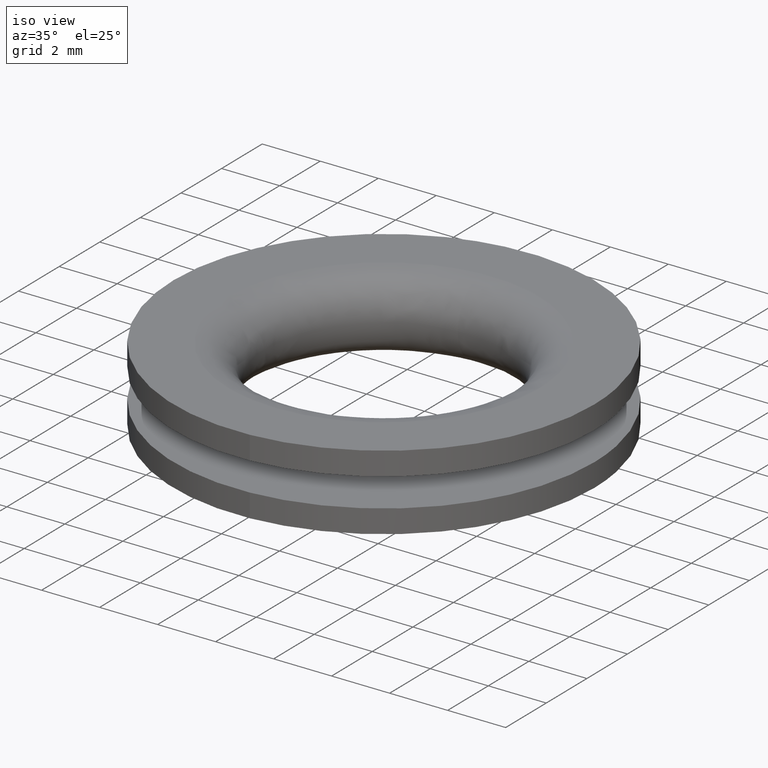
[diagram: clean part render]
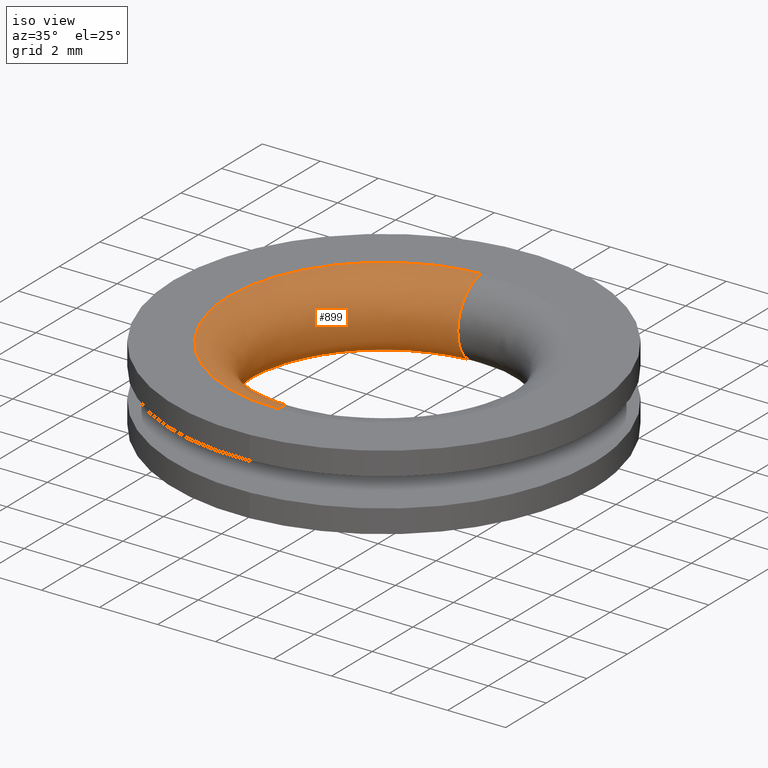
[diagram: same view with one face highlighted and labeled with its STEP entity id]
A machine part, iso view. The second image highlights one B-rep face of the part: STEP entity #899.
In plain terms, the highlighted face is a freeform B-spline surface patch.
Its self-contained STEP definition (entity closure, byte-faithful):
#701=CARTESIAN_POINT('',(-0.373072312370778,5.336976844726053,4.607788E-012));
#702=VERTEX_POINT('',#701);
#720=CARTESIAN_POINT('',(0.067225597682583,-5.349573136930310,4.742582E-012));
#721=VERTEX_POINT('',#720);
#735=CARTESIAN_POINT('',(0.067248550375671,-5.351187910571347,2.599999000000008));
#736=VERTEX_POINT('',#735);
#737=CARTESIAN_POINT('',(0.067225597682583,-5.349573136930310,4.742582E-012));
#738=CARTESIAN_POINT('',(0.050889776216541,-4.049678262613917,0.000002483334297));
#739=CARTESIAN_POINT('',(0.050891105894500,-4.049678245908878,1.300000000001181));
#740=CARTESIAN_POINT('',(0.050892437225290,-4.049678229183074,2.601613452466413));
#741=CARTESIAN_POINT('',(0.067248550375671,-5.351187910571347,2.599999000000008));
#749=(BOUNDED_CURVE()B_SPLINE_CURVE(2,(#737,#738,#739,#740,#741),.UNSPECIFIED.,.F.,.U.)B_SPLINE_CURVE_WITH_KNOTS((3,2,3),(-3.781080216837798,-2.0,-0.217410354238450),.UNSPECIFIED.)CURVE()GEOMETRIC_REPRESENTATION_ITEM()RATIONAL_B_SPLINE_CURVE((0.930395486795932,0.682054713381032,1.0,0.681785261277047,0.930816820930347))REPRESENTATION_ITEM(''));
#750=EDGE_CURVE('',#721,#736,#749,.T.);
#767=CARTESIAN_POINT('',(-0.373184664486969,5.338584167763401,2.599998998458898));
#768=VERTEX_POINT('',#767);
#784=CARTESIAN_POINT('',(-0.373072312370778,5.336976844726054,4.607788E-012));
#785=CARTESIAN_POINT('',(-0.282419529414038,4.040138983922403,-0.000002447796619));
#786=CARTESIAN_POINT('',(-0.282419529414038,4.040138983922404,1.300000000000000));
#787=CARTESIAN_POINT('',(-0.282419529414038,4.040138983922403,2.601614695546028));
#788=CARTESIAN_POINT('',(-0.373184664486969,5.338584167763401,2.599998998458897));
#796=(BOUNDED_CURVE()B_SPLINE_CURVE(2,(#784,#785,#786,#787,#788),.UNSPECIFIED.,.F.,.U.)B_SPLINE_CURVE_WITH_KNOTS((3,2,3),(-3.781084824768846,-2.0,-0.217409193549716),.UNSPECIFIED.)CURVE()GEOMETRIC_REPRESENTATION_ITEM()RATIONAL_B_SPLINE_CURVE((0.909468241467737,0.666711634718936,0.977505800795127,0.666448845258098,0.909879158943792))REPRESENTATION_ITEM(''));
#797=EDGE_CURVE('',#702,#768,#796,.T.);
#802=CARTESIAN_POINT('',(0.069548024091555,-5.534164583073453,0.013173857421151));
#803=CARTESIAN_POINT('',(-5.464616558981897,-5.603712607165005,0.013173857421151));
#804=CARTESIAN_POINT('',(-5.534164583073453,-0.069548024091555,0.013173857421151));
#805=CARTESIAN_POINT('',(-5.599842498862614,5.156659336910904,0.013173857421151));
#806=CARTESIAN_POINT('',(-0.385945763786428,5.521128546557752,0.013173857421151));
#807=CARTESIAN_POINT('',(0.050892436395499,-4.049678229183365,-0.199802171926271));
#808=CARTESIAN_POINT('',(-3.998785792787865,-4.100570665578863,-0.199802171926271));
#809=CARTESIAN_POINT('',(-4.049678229183365,-0.050892436395499,-0.199802171926271));
#810=CARTESIAN_POINT('',(-4.097738676558385,3.773435129825095,-0.199802171926271));
#811=CARTESIAN_POINT('',(-0.282419529414039,4.040138983922403,-0.199802171926271));
#812=CARTESIAN_POINT('',(0.050892436395499,-4.049678229183366,1.300000000000000));
#813=CARTESIAN_POINT('',(-3.998785792787866,-4.100570665578865,1.300000000000000));
#814=CARTESIAN_POINT('',(-4.049678229183366,-0.050892436395499,1.300000000000000));
#815=CARTESIAN_POINT('',(-4.097738676558387,3.773435129825096,1.300000000000000));
#816=CARTESIAN_POINT('',(-0.282419529414039,4.040138983922403,1.300000000000000));
#817=CARTESIAN_POINT('',(0.050892436395499,-4.049678229183365,2.801575401807286));
#818=CARTESIAN_POINT('',(-3.998785792787866,-4.100570665578866,2.801575401807285));
#819=CARTESIAN_POINT('',(-4.049678229183365,-0.050892436395499,2.801575401807286));
#820=CARTESIAN_POINT('',(-4.097738676558385,3.773435129825096,2.801575401807285));
#821=CARTESIAN_POINT('',(-0.282419529414039,4.040138983922403,2.801575401807286));
#822=CARTESIAN_POINT('',(0.069566934295773,-5.535669330099804,2.586609361610143));
#823=CARTESIAN_POINT('',(-5.466102395804032,-5.605236264395576,2.586609361610142));
#824=CARTESIAN_POINT('',(-5.535669330099804,-0.069566934295773,2.586609361610143));
#825=CARTESIAN_POINT('',(-5.601365103805367,5.158061439737201,2.586609361610142));
#826=CARTESIAN_POINT('',(-0.386050702974931,5.522629749067693,2.586609361610143));
#834=(BOUNDED_SURFACE()B_SPLINE_SURFACE(2,2,((#802,#807,#812,#817,#822),(#803,#808,#813,#818,#823),(#804,#809,#814,#819,#824),(#805,#810,#815,#820,#825),(#806,#811,#816,#821,#826)),.UNSPECIFIED.,.F.,.F.,.U.)B_SPLINE_SURFACE_WITH_KNOTS((3,2,3),(3,2,3),(0.0,9.172521477096733,17.978142095109600),(0.0,2.374243438344804,4.750311509906685),.UNSPECIFIED.)GEOMETRIC_REPRESENTATION_ITEM()RATIONAL_B_SPLINE_SURFACE(((0.985693070865563,0.650277612432365,1.0,0.650008846780619,0.986209016741092),(0.696990254577632,0.459815709404723,0.707106781186548,0.459625663389823,0.697355083404943),(0.985693070865563,0.650277612432365,1.0,0.650008846780619,0.986209016741092),(0.708538367229149,0.467434185525829,0.718822509939086,0.467240990725455,0.708909240738389),(0.963520694574650,0.635650138279842,0.977505800795127,0.635387418296206,0.964025034660875)))REPRESENTATION_ITEM('')SURFACE());
#835=CARTESIAN_POINT('',(-5.349998000000000,0.0,-2.886580E-015));
#836=VERTEX_POINT('',#835);
#837=CARTESIAN_POINT('',(-5.349998000000000,0.0,-2.886580E-015));
#838=CARTESIAN_POINT('',(-5.349998085346190,4.989072064830499,2.302451E-012));
#839=CARTESIAN_POINT('',(-0.373072312370778,5.336976844726053,4.607788E-012));
#847=(BOUNDED_CURVE()B_SPLINE_CURVE(2,(#837,#838,#839),.UNSPECIFIED.,.F.,.U.)B_SPLINE_CURVE_WITH_KNOTS((3,3),(0.0,0.237833706346366),.UNSPECIFIED.)CURVE()GEOMETRIC_REPRESENTATION_ITEM()RATIONAL_B_SPLINE_CURVE((1.0,0.721360480823517,0.972879918289533))REPRESENTATION_ITEM(''));
#848=EDGE_CURVE('',#836,#702,#847,.T.);
#849=ORIENTED_EDGE('',*,*,#848,.T.);
#850=ORIENTED_EDGE('',*,*,#797,.T.);
#851=CARTESIAN_POINT('',(-5.351610451245589,0.0,2.599999000000000));
#852=VERTEX_POINT('',#851);
#853=CARTESIAN_POINT('',(-5.351610451245589,0.0,2.599999000000000));
#854=CARTESIAN_POINT('',(-5.351610494532991,4.990575138265784,2.599998999229450));
#855=CARTESIAN_POINT('',(-0.373184664486969,5.338584167763401,2.599998998458898));
#863=(BOUNDED_CURVE()B_SPLINE_CURVE(2,(#853,#854,#855),.UNSPECIFIED.,.F.,.U.)B_SPLINE_CURVE_WITH_KNOTS((3,3),(0.0,0.237833706509029),.UNSPECIFIED.)CURVE()GEOMETRIC_REPRESENTATION_ITEM()RATIONAL_B_SPLINE_CURVE((1.0,0.721360480632945,0.972879918633580))REPRESENTATION_ITEM(''));
#864=EDGE_CURVE('',#852,#768,#863,.T.);
#865=ORIENTED_EDGE('',*,*,#864,.F.);
#866=CARTESIAN_POINT('',(0.067248550375671,-5.351187910571347,2.599999000000008));
#867=CARTESIAN_POINT('',(0.033625602658654,-5.351610451245590,2.599999000000001));
#868=CARTESIAN_POINT('',(0.0,-5.351610451245589,2.599999000000000));
#869=CARTESIAN_POINT('',(-5.351610451245590,-5.351610451245590,2.599999000000000));
#870=CARTESIAN_POINT('',(-5.351610451245589,0.0,2.599999000000000));
#878=(BOUNDED_CURVE()B_SPLINE_CURVE(2,(#866,#867,#868,#869,#870),.UNSPECIFIED.,.F.,.U.)B_SPLINE_CURVE_WITH_KNOTS((3,2,3),(0.747784295921381,0.750000000000000,1.0),.UNSPECIFIED.)CURVE()GEOMETRIC_REPRESENTATION_ITEM()RATIONAL_B_SPLINE_CURVE((0.994854295643214,0.997404141201901,1.0,0.707106781186547,1.0))REPRESENTATION_ITEM(''));
#879=EDGE_CURVE('',#736,#852,#878,.T.);
#880=ORIENTED_EDGE('',*,*,#879,.F.);
#881=ORIENTED_EDGE('',*,*,#750,.F.);
#882=CARTESIAN_POINT('',(0.067225597682583,-5.349573136930310,4.742582E-012));
#883=CARTESIAN_POINT('',(0.033614110246538,-5.349995524565808,4.727860E-012));
#884=CARTESIAN_POINT('',(-0.000000031009601,-5.349995532366608,4.712952E-012));
#885=CARTESIAN_POINT('',(-5.349998015407383,-5.349996773935398,2.340218E-012));
#886=CARTESIAN_POINT('',(-5.349998000000000,0.0,-2.886580E-015));
#894=(BOUNDED_CURVE()B_SPLINE_CURVE(2,(#882,#883,#884,#885,#886),.UNSPECIFIED.,.F.,.U.)B_SPLINE_CURVE_WITH_KNOTS((3,2,3),(0.747784383347972,0.750000000000000,1.0),.UNSPECIFIED.)CURVE()GEOMETRIC_REPRESENTATION_ITEM()RATIONAL_B_SPLINE_CURVE((0.994854496865377,0.997404243628524,1.0,0.707106781186547,1.0))REPRESENTATION_ITEM(''));
#895=EDGE_CURVE('',#721,#836,#894,.T.);
#896=ORIENTED_EDGE('',*,*,#895,.T.);
#897=EDGE_LOOP('',(#849,#850,#865,#880,#881,#896));
#898=FACE_OUTER_BOUND('',#897,.T.);
#899=ADVANCED_FACE('',(#898),#834,.T.);